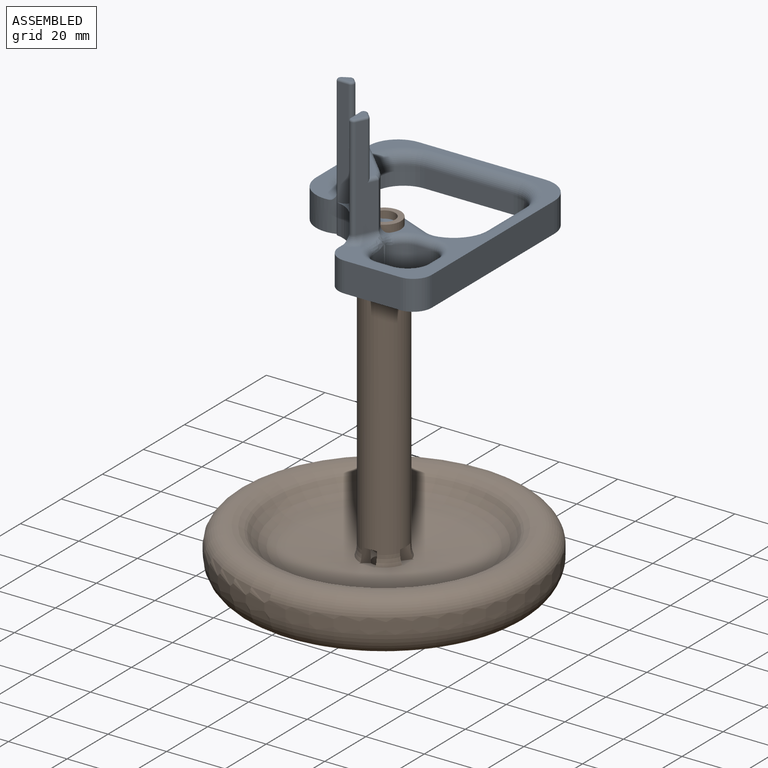
[diagram: assembled view]
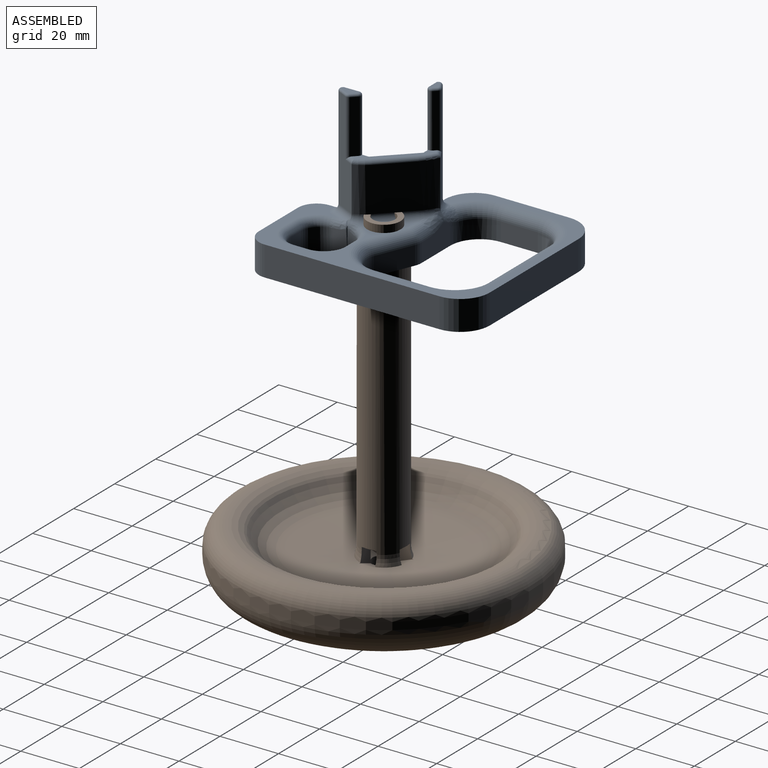
[diagram: assembled view, second angle]
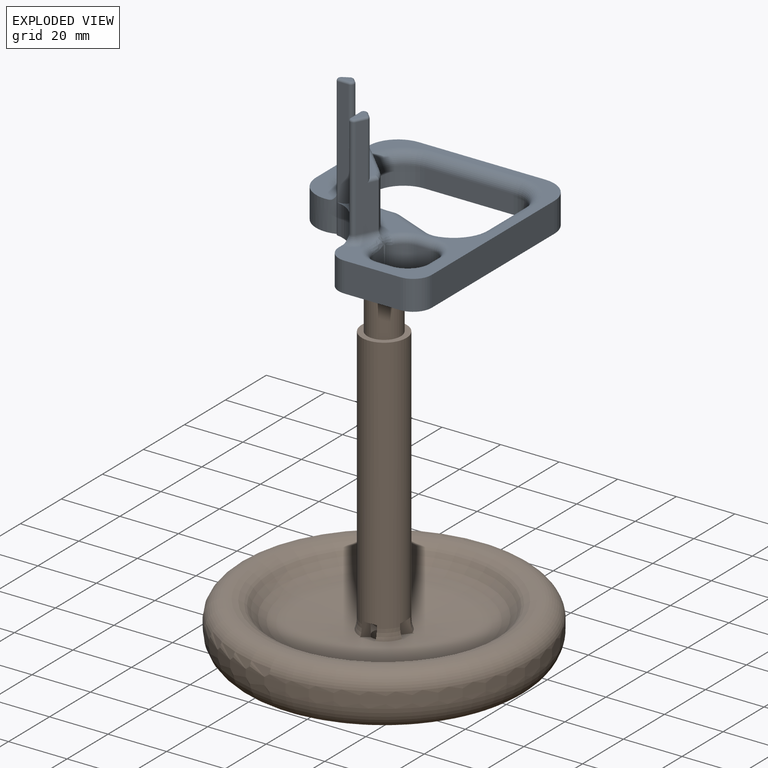
[diagram: exploded view]
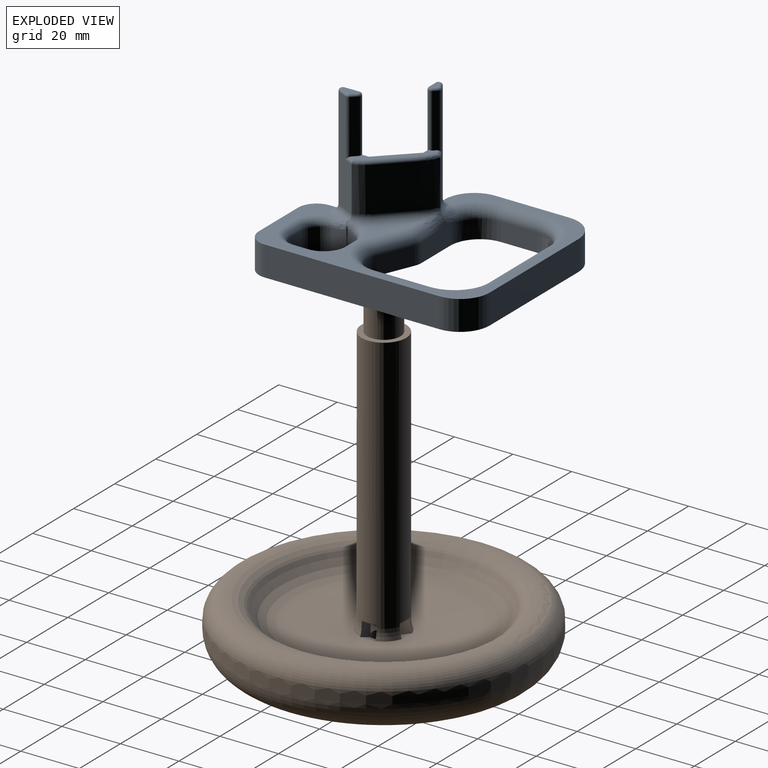
[diagram: exploded view, second angle]
ASSEMBLY  parts=2 mates=2
PART A: 127 faces, bbox 156.4x156.6x50.7 mm
  f0: cylinder r=16.51mm len=15.49mm, axis (0,0,-1), area 98.7mm2, adj f2,f38,f60,f61,f62,f73
  f1: cylinder r=12.7mm len=15.26mm, axis (0,0,-1), area 86.7mm2, adj f2,f42,f64,f65,f66,f70
  f2: plane 15.24x9.52mm, normal (0.71,0.71,0), area 204.8mm2, adj f0,f1,f63,f72
  f3: plane 4.19x2.06mm, normal (0,0,1), area 5.9mm2, adj f85,f86,f87,f88,f89,f90
  f4: cylinder r=6.35mm len=8.62mm, axis (0,0,-1), area 77.3mm2, adj f5,f35,f37,f119,f120,f121,f122
  f5: plane 7.62x5.08mm, normal (0,-1,0), area 38.7mm2, adj f4,f6,f37,f118
  f6: cylinder r=6.35mm len=7.62mm, axis (0,0,-1), area 76mm2, adj f5,f7,f37,f116
  f7: plane 7.62x5.08mm, normal (-1,0,0), area 38.7mm2, adj f6,f8,f37,f114
  f8: cylinder r=6.35mm len=7.62mm, axis (0,0,-1), area 76mm2, adj f7,f9,f37,f112
  f9: plane 7.62x5.08mm, normal (0,1,0), area 38.7mm2, adj f8,f10,f37,f110
  f10: cylinder r=6.35mm len=7.68mm, axis (0,0,-1), area 76mm2, adj f9,f35,f37,f111,f113
  f11: plane 59.69x10.16mm, normal (1,0,0), area 606.5mm2, adj f12,f33,f36,f37
  f12: cylinder r=10.16mm len=10.16mm, axis (0,0,-1), area 162.1mm2, adj f11,f13,f36,f37
  f13: plane 43.18x10.16mm, normal (0,1,0), area 438.7mm2, adj f12,f14,f36,f37
  f14: cylinder r=10.16mm len=10.16mm, axis (0,0,-1), area 162.1mm2, adj f13,f15,f36,f37
  f15: plane 25.4x10.16mm, normal (-1,0,0), area 258.1mm2, adj f14,f16,f36,f37
  f16: cylinder r=10.16mm len=13.73mm, axis (0,0,-1), area 202.4mm2, adj f15,f36,f37,f49,f57
  f17: cylinder r=10.16mm len=10.16mm, axis (0,0,-1), area 65.3mm2, adj f18,f37,f49,f54
  f18: plane 10.21x9.58mm, normal (-0.71,-0.71,0), area 136.5mm2, adj f17,f19,f37,f55
  f19: cylinder r=6.35mm len=47.5mm, axis (0,0,-1), area 79.6mm2, adj f18,f20,f37,f41,f56,f77
  f20: plane 48.57x8.27mm, normal (-1,0,0), area 140.8mm2, adj f19,f21,f36,f37,f52,f68,f78
  f21: cylinder r=6.35mm len=10.16mm, axis (0,0,-1), area 101.3mm2, adj f20,f22,f36,f37
  f22: plane 19.05x10.16mm, normal (0,-1,0), area 193.5mm2, adj f21,f33,f36,f37
  f23: cylinder r=6.35mm len=6.35mm, axis (0,0,-1), area 15.9mm2, adj f24,f34,f37,f91
  f24: plane 14.01x8.54mm, normal (0,1,0), area 99.4mm2, adj f23,f25,f37,f92,f94,f96,f98,f100
  f25: cylinder r=10.16mm len=10.16mm, axis (0,0,-1), area 102.8mm2, adj f24,f26,f37,f106,f108,f109
  f26: plane 12.7x6.35mm, normal (1,0,0), area 80.6mm2, adj f25,f27,f37,f107
  f27: cylinder r=10.16mm len=10.16mm, axis (0,0,-1), area 101.3mm2, adj f26,f28,f37,f105
  f28: plane 30.48x6.35mm, normal (0,-1,0), area 193.5mm2, adj f27,f29,f37,f103
  f29: cylinder r=10.16mm len=10.16mm, axis (0,0,-1), area 101.3mm2, adj f28,f30,f37,f101
  f30: plane 19.05x6.35mm, normal (-1,0,0), area 121mm2, adj f29,f31,f37,f99
  f31: cylinder r=10.16mm len=9.83mm, axis (0,0,-1), area 84.7mm2, adj f30,f32,f37,f97
  f32: cylinder r=6.35mm len=6.35mm, axis (0,0,-1), area 26.3mm2, adj f31,f34,f37,f95
  f33: cylinder r=6.35mm len=10.16mm, axis (0,0,-1), area 101.3mm2, adj f11,f22,f36,f37
  f34: plane 12.59x6.35mm, normal (0.38,0.92,0), area 86.6mm2, adj f23,f32,f37,f93
  f35: plane 11.09x7.56mm, normal (1,0,0), area 40.9mm2, adj f4,f10,f37,f115,f117
  f36: plane 76.2x63.5mm, normal (0,0,1), area 848mm2, adj f11,f12,f13,f14,f15,f16,f20,f21
  f37: plane 76.2x63.5mm, normal (0,0,-1), area 1799.4mm2, adj f4,f5,f6,f7,f8,f9,f10,f11
  f38: plane 35x5.21mm, normal (-0.48,0.88,0), area 138.2mm2, adj f0,f47,f49,f58,f59,f60,f71,f89
  f39: plane 37.38x6.82mm, normal (0,-1,0), area 187.4mm2, adj f40,f49,f50,f53,f54,f74,f85
  f40: plane 13.38x10.63mm, normal (-0.71,-0.7,0), area 199.9mm2, adj f39,f41,f54,f55,f75
  f41: plane 39.3x7.5mm, normal (-1,-0.01,0), area 140.6mm2, adj f19,f40,f51,f55,f56,f76,f79
  f42: plane 34.81x6.53mm, normal (0.9,-0.44,0), area 182mm2, adj f1,f48,f52,f66,f67,f69,f82
  f43: plane 5.95x2.68mm, normal (0,0,1), area 10.4mm2, adj f77,f78,f79,f80,f81,f82,f83,f84
  f44: plane 18.36x1.68mm, normal (0.71,0.7,0), area 43.2mm2, adj f46,f48,f51,f69,f83
  f45: plane 18.34x1.05mm, normal (0.71,0.7,0), area 27mm2, adj f46,f47,f50,f71,f88
  f46: plane 17.9x17.8mm, normal (0,0,1), area 34mm2, adj f44,f45,f50,f51,f69,f70,f71,f72
  f47: cylinder r=1.27mm len=19.56mm, axis (0,0,-1), area 31mm2, adj f38,f45,f71,f90
  f48: cylinder r=1.27mm len=19.56mm, axis (0,0,1), area 29.8mm2, adj f42,f44,f69,f84
  f49: cylinder r=1.27mm len=47.5mm, axis (0,0,-1), area 112.4mm2, adj f16,f17,f37,f38,f39,f53,f57,f87
  f50: cylinder r=1.27mm len=19.56mm, axis (0,0,1), area 55.9mm2, adj f39,f45,f46,f74,f86
  f51: cylinder r=1.27mm len=19.56mm, axis (0,0,-1), area 56.2mm2, adj f41,f44,f46,f76,f81
  f52: cylinder r=1.27mm len=34.8mm, axis (0,0,1), area 118.6mm2, adj f20,f42,f68,f80
  f53: bspline ~5.08x4.14mm, area 0mm2, adj f39,f49,f54
  f54: bspline ~9.01x7.38mm, area 15.8mm2, adj f17,f39,f40,f53,f55
  f55: bspline ~154.09x153.92mm, area 72.1mm2, adj f18,f40,f41,f54,f56
  f56: bspline ~6.12x5.02mm, area 9.9mm2, adj f19,f41,f55
  f57: torus R=3.81mm, axis (0,0,1), area 11.6mm2, adj f16,f36,f49,f58,f108
  f58: cylinder r=2.54mm len=4.25mm, axis (-0.88,-0.48,0), area 10.2mm2, adj f38,f57,f59,f104,f106
  f59: bspline ~2.75x2.48mm, area 0.1mm2, adj f38,f58,f60,f102
  f60: bspline ~2.62x1.88mm, area 3.8mm2, adj f0,f38,f59,f61,f100
  f61: bspline ~5.25x3.12mm, area 4.3mm2, adj f0,f60,f62,f98,f100
  f62: torus R=19.05mm, axis (0,0,1), area 12.4mm2, adj f0,f61,f63,f96
  f63: cylinder r=2.54mm len=11.32mm, axis (-0.71,0.71,0), area 53.3mm2, adj f2,f36,f62,f64,f94
  f64: torus R=15.24mm, axis (0,0,1), area 19.5mm2, adj f1,f36,f63,f65,f122
  f65: bspline ~2.81x2.76mm, area 1.7mm2, adj f1,f64,f66,f119,f121
  f66: bspline ~2.82x2.61mm, area 1.8mm2, adj f1,f42,f65,f67,f117,f119
  f67: cylinder r=2.54mm len=7.08mm, axis (0.44,0.9,0), area 22.3mm2, adj f36,f42,f66,f68,f113,f115
  f68: torus R=3.81mm, axis (0,0,1), area 17mm2, adj f20,f36,f52,f67
  f69: cylinder r=1.27mm len=3.83mm, axis (-0.44,-0.9,0), area 5.2mm2, adj f42,f44,f46,f48,f70
  f70: torus R=11.43mm, axis (0,0,1), area 10.4mm2, adj f1,f46,f69,f72
  f71: cylinder r=1.27mm len=3.67mm, axis (0.88,0.48,0), area 4.9mm2, adj f38,f45,f46,f47,f73
  f72: cylinder r=1.27mm len=10.42mm, axis (0.71,-0.71,0), area 26.8mm2, adj f2,f46,f70,f73
  f73: torus R=15.24mm, axis (0,0,1), area 11.9mm2, adj f0,f46,f71,f72
  f74: cylinder r=1.27mm len=3.58mm, axis (-1,0,0), area 5.3mm2, adj f39,f46,f50,f75
  f75: cylinder r=1.27mm len=12.27mm, axis (0.7,-0.71,0), area 30.9mm2, adj f40,f46,f74,f76
  f76: cylinder r=1.27mm len=3.64mm, axis (0.01,-1,0), area 5.5mm2, adj f41,f46,f51,f75
  f77: torus R=7.11mm, axis (0,0,1), area 0.9mm2, adj f19,f43,f78,f79
  f78: cylinder r=0.76mm len=1.73mm, axis (0,1,0), area 2.1mm2, adj f20,f43,f77,f80
  f79: cylinder r=0.76mm len=2.43mm, axis (-0.01,1,0), area 2.9mm2, adj f41,f43,f77,f81
  f80: torus R=0.51mm, axis (0,0,1), area 3.2mm2, adj f43,f52,f78,f82
  f81: torus R=0.51mm, axis (0,0,1), area 2.8mm2, adj f43,f51,f79,f83
  f82: cylinder r=0.76mm len=3.6mm, axis (-0.44,-0.9,0), area 4.3mm2, adj f42,f43,f80,f84
  f83: cylinder r=0.76mm len=2.21mm, axis (-0.7,0.71,0), area 2.8mm2, adj f43,f44,f81,f84
  f84: torus R=0.51mm, axis (0,0,1), area 1.5mm2, adj f43,f48,f82,f83
  f85: cylinder r=0.76mm len=3.73mm, axis (-1,0,0), area 4.3mm2, adj f3,f39,f86,f87
  f86: torus R=0.51mm, axis (0,0,1), area 2.8mm2, adj f3,f50,f85,f88
  f87: torus R=0.51mm, axis (0,0,1), area 2.5mm2, adj f3,f49,f85,f89
  f88: cylinder r=0.76mm len=1.58mm, axis (-0.7,0.71,0), area 1.8mm2, adj f3,f45,f86,f90
  f89: cylinder r=0.76mm len=2.5mm, axis (0.88,0.48,0), area 2.9mm2, adj f3,f38,f87,f90
  f90: torus R=0.51mm, axis (0,0,1), area 1.5mm2, adj f3,f47,f88,f89
  f91: torus R=2.54mm, axis (0,0,1), area 11.7mm2, adj f23,f36,f92,f93
  f92: cylinder r=3.81mm len=3.81mm, axis (1,0,0), area 18.2mm2, adj f24,f36,f91,f94
  f93: cylinder r=3.81mm len=14.06mm, axis (0.92,-0.38,0), area 81.7mm2, adj f34,f36,f91,f95
  f94: bspline ~4.35x4.3mm, area 7.5mm2, adj f24,f63,f92,f96
  f95: torus R=10.16mm, axis (0,0,1), area 30.2mm2, adj f32,f36,f93,f97
  f96: bspline ~9.78x5.01mm, area 22.4mm2, adj f24,f62,f94,f98
  f97: torus R=13.97mm, axis (0,0,1), area 90.8mm2, adj f31,f36,f95,f99
  f98: bspline ~4.22x2.93mm, area 5mm2, adj f24,f61,f96,f100
  f99: cylinder r=3.81mm len=19.05mm, axis (0,1,0), area 114mm2, adj f30,f36,f97,f101
  f100: bspline ~4.22x3.17mm, area 4.8mm2, adj f24,f60,f61,f98,f102
  f101: torus R=13.97mm, axis (0,0,1), area 108.5mm2, adj f29,f36,f99,f103
  f102: bspline ~3.02x2.46mm, area 0.1mm2, adj f24,f59,f100,f104
  f103: cylinder r=3.81mm len=30.48mm, axis (-1,0,0), area 182.4mm2, adj f28,f36,f101,f105
  f104: bspline ~3.54x3.02mm, area 7.5mm2, adj f24,f58,f102,f106
  f105: torus R=13.97mm, axis (0,0,1), area 108.5mm2, adj f27,f36,f103,f107
  f106: bspline ~4.74x4.21mm, area 8.8mm2, adj f25,f58,f104,f108
  f107: cylinder r=3.81mm len=12.7mm, axis (0,-1,0), area 76mm2, adj f26,f36,f105,f109
  f108: bspline ~3.95x3.76mm, area 7.9mm2, adj f25,f57,f106,f109
  f109: torus R=13.97mm, axis (0,0,1), area 84.8mm2, adj f25,f36,f107,f108
  f110: cylinder r=2.54mm len=5.08mm, axis (1,0,0), area 20.3mm2, adj f9,f36,f111,f112
  f111: torus R=8.89mm, axis (0,0,1), area 40.6mm2, adj f10,f36,f110,f113
  f112: torus R=8.89mm, axis (0,0,1), area 45.6mm2, adj f8,f36,f110,f114
  f113: bspline ~4.09x2.93mm, area 4.3mm2, adj f10,f67,f111,f115
  f114: cylinder r=2.54mm len=5.08mm, axis (0,1,0), area 20.3mm2, adj f7,f36,f112,f116
  f115: bspline ~4.81x2.91mm, area 13.9mm2, adj f35,f67,f113,f117
  f116: torus R=8.89mm, axis (0,0,1), area 45.6mm2, adj f6,f36,f114,f118
  f117: bspline ~3.17x2.52mm, area 0.6mm2, adj f35,f66,f115
  f118: cylinder r=2.54mm len=5.08mm, axis (-1,0,0), area 20.3mm2, adj f5,f36,f116,f120
  f119: bspline ~2.41x2.1mm, area 0.4mm2, adj f4,f65,f66,f121
  f120: torus R=8.89mm, axis (0,0,1), area 30.7mm2, adj f4,f36,f118,f122
  f121: bspline ~2.14x1.63mm, area 1.5mm2, adj f4,f65,f119,f122
  f122: bspline ~4.93x3.04mm, area 10mm2, adj f4,f64,f120,f121
  f123: cylinder r=3.43mm len=8.89mm, axis (0,0,-1), area 191.5mm2, adj f125,f126
  f124: cylinder r=5.91mm len=11.81mm, axis (0,0,-1), area 329.9mm2, adj f37,f125
  f125: plane 11.81x11.81mm, normal (0,0,-1), area 72.6mm2, adj f123,f124
  f126: plane 6.86x6.86mm, normal (0,0,-1), area 36.9mm2, adj f123
PART B: 39 faces, bbox 110.2x110.2x114.5 mm
  f0: torus R=17.78mm, axis (0,0,-1), area 26.4mm2, adj f4,f19,f21,f36
  f1: plane 2.52x0.1mm, normal (0,0,-1), area 0.2mm2, adj f2,f21
  f2: plane 5.11x4.7mm, normal (0,0.44,-0.9), area 22.2mm2, adj f1,f4,f5,f18,f21
  f3: plane 5.57x5.08mm, normal (0,-0.36,0.93), area 26.2mm2, adj f4,f5,f18,f19
  f4: plane 6.78x5.67mm, normal (-1,0,0), area 21.9mm2, adj f0,f2,f3,f18,f19,f21
  f5: plane 6.78x5.67mm, normal (1,0,0), area 21.9mm2, adj f2,f3,f6,f18,f19,f21
  f6: torus R=17.78mm, axis (0,0,-1), area 26.4mm2, adj f5,f10,f19,f21
  f7: plane 2.52x0.1mm, normal (0,0,-1), area 0.2mm2, adj f8,f21
  f8: plane 5.31x4.9mm, normal (-0.44,0,-0.9), area 22.2mm2, adj f7,f10,f11,f18,f21
  f9: plane 5.75x5.26mm, normal (0.36,0,0.93), area 26.2mm2, adj f10,f11,f18,f19
  f10: plane 6.78x5.67mm, normal (0,-1,0), area 21.9mm2, adj f6,f8,f9,f18,f19,f21
  f11: plane 6.78x5.67mm, normal (0,1,0), area 21.9mm2, adj f8,f9,f12,f18,f19,f21
  f12: torus R=17.78mm, axis (0,0,-1), area 26.4mm2, adj f11,f16,f19,f21
  f13: plane 2.52x0.1mm, normal (0,0,-1), area 0.2mm2, adj f14,f21
  f14: plane 5.11x4.7mm, normal (0,-0.44,-0.9), area 22.2mm2, adj f13,f16,f17,f18,f21
  f15: plane 5.57x5.08mm, normal (0,0.36,0.93), area 26.2mm2, adj f16,f17,f18,f19
  f16: plane 6.78x5.67mm, normal (1,0,0), area 21.9mm2, adj f12,f14,f15,f18,f19,f21
  f17: plane 6.78x5.67mm, normal (-1,0,0), area 21.9mm2, adj f14,f15,f18,f19,f20,f21
  f18: cylinder r=3.81mm len=109.22mm, axis (0,0,-1), area 2511.6mm2, adj f2,f3,f4,f5,f8,f9,f10,f11
  f19: cone r=8.27mm half-angle=84.8deg, axis (0,0,1), area 2668.1mm2, adj f0,f3,f4,f5,f6,f9,f10,f11
  f20: torus R=17.78mm, axis (0,0,-1), area 26.4mm2, adj f17,f19,f21,f37
  f21: cylinder r=7.62mm len=88.35mm, axis (0,0,-1), area 4206.2mm2, adj f0,f1,f2,f4,f5,f6,f7,f8
  f22: plane 15.24x15.24mm, normal (0,0,1), area 79.8mm2, adj f21,f23
  f23: cylinder r=5.71mm len=12.7mm, axis (0,0,-1), area 456mm2, adj f22,f24
  f24: plane 11.43x11.43mm, normal (0,0,1), area 57mm2, adj f18,f23
  f25: plane 81.28x81.28mm, normal (0,0,-1), area 4940.4mm2, adj f26,f38
  f26: torus R=40.64mm, axis (0,0,-1), area 4723.8mm2, adj f25,f27
  f27: cylinder r=50.8mm len=101.6mm, axis (0,0,-1), area 810.7mm2, adj f26,f28
  f28: torus R=44.45mm, axis (0,0,-1), area 3039.1mm2, adj f27,f29
  f29: plane 88.9x88.9mm, normal (0,0,1), area 209.4mm2, adj f28,f30
  f30: torus R=43.69mm, axis (0,0,-1), area 1493.9mm2, adj f29,f31
  f31: cone r=37.32mm half-angle=38.1deg, axis (0,0,1), area 426.9mm2, adj f30,f32
  f32: torus R=29.33mm, axis (0,0,-1), area 1770.6mm2, adj f19,f31
  f33: plane 5.57x5.08mm, normal (-0.36,0,0.93), area 26.2mm2, adj f18,f19,f36,f37
  f34: plane 2.52x0.1mm, normal (0,0,-1), area 0.2mm2, adj f21,f35
  f35: plane 5.11x4.7mm, normal (0.44,0,-0.9), area 22.2mm2, adj f18,f21,f34,f36,f37
  f36: plane 6.78x5.67mm, normal (0,-1,0), area 21.9mm2, adj f0,f18,f19,f21,f33,f35
  f37: plane 6.78x5.67mm, normal (0,1,0), area 21.9mm2, adj f18,f19,f20,f21,f33,f35
  f38: torus R=8.89mm, axis (0,0,-1), area 283.6mm2, adj f18,f25
PLACE A t=(-40.01,39.58,73.05)mm
PLACE B t=(-38.33,35.16,-28.55)mm
MATE fastened A.f123 <-> B.f0  axis (0,0,-1) through (-38.33,35.16,73.05)mm
MATE slider B.f0 <-> A.f123  axis (0,0,-1) through (-38.33,35.16,85.75)mm
